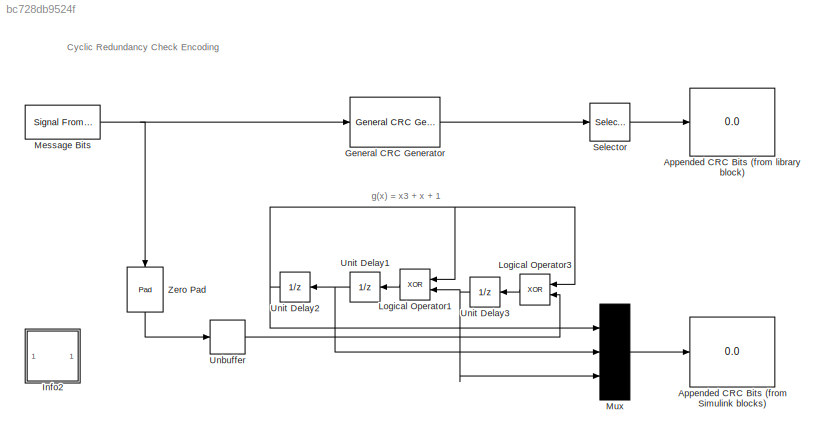
MODEL slx_bc728db9524f
KIND model
CONFIG PreLoadFcn = iniStates = [ 0 1 1];
BLOCK [Display] Appended CRC Bits (from Simulink blocks)
  Decimation = 1
  Ports = [1]
BLOCK [Display] Appended CRC Bits (from library block)
  Decimation = 1
  Ports = [1]
BLOCK [Reference] General CRC Generator  REF=commcrc2/General CRC
Generator
  Ports = [1, 1]
  SourceBlock = commcrc2/General CRC\nGenerator
  SourceType = General CRC Generator
  directMethod = off
  finalXOR = 0
  genPoly = [1 0 1 1]
  iniStates = iniStates
  numChecksums = 1
  reflectChecksums = off
  reflectInputBytes = off
BLOCK [SubSystem] Info2
  AncestorBlock = commblksprivate/Info
  OpenFcn = helpview([docroot '/toolbox/comm/comm.map'], 'doc_crcgen')
  Ports = []
  RequestExecContextInheritance = off
BLOCK [Logic] Logical Operator1
  AllPortsSameDT = off
  Operator = XOR
  OutDataTypeStr = float('double')
  Ports = [2, 1]
BLOCK [Logic] Logical Operator3
  AllPortsSameDT = off
  Operator = XOR
  OutDataTypeStr = float('double')
  Ports = [2, 1]
BLOCK [Reference] Message Bits  REF=dspsrcs4/Signal From
Workspace
  OutputAfterFinalValue = Cyclic repetition
  Ports = [0, 1]
  SourceBlock = dspsrcs4/Signal From\nWorkspace
  SourceType = Signal From Workspace
  Ts = 1
  X = [1 1 1 0 1 0]
  ignoreOrWarnInputAndFrameLengths = off
  nsamps = 6
BLOCK [Mux] Mux
  Inputs = 3
  Ports = [3, 1]
BLOCK [Selector] Selector
  Indices = [7:9]
  InputPortWidth = 9
  Ports = [1, 1]
BLOCK [Unbuffer] Unbuffer
  Ports = [1, 1]
  SampleBasedProcessing = Same as frame based
BLOCK [UnitDelay] Unit Delay1
  InitialCondition = iniStates(2)
  SampleTime = -1
BLOCK [UnitDelay] Unit Delay2
  InitialCondition = iniStates(1)
  SampleTime = -1
BLOCK [UnitDelay] Unit Delay3
  InitialCondition = iniStates(3)
  SampleTime = -1
BLOCK [Reference] Zero Pad  REF=dspsigops/Pad
  LockScale = off
  Ports = [1, 1]
  SourceBlock = dspsigops/Pad
  SourceType = Pad
  accumFracLength = 30
  accumMode = Same as input
  accumWordLength = 32
  dimsToPad = 1
  isVarDimsMode = off
  numOutCols = 1
  numOutRows = 6+3
  outSize = 1
  outSizeMode = User-specified
  outputFracLength = 15
  outputMode = Same as input
  outputWordLength = 16
  overflowMode = off
  padAlong = Columns
  padBeginning = 0
  padEnd = 0
  padNumOutColsSpecMethod = User-specified
  padNumOutRowsSpecMethod = User-specified
  padSigAt = End
  padVal = 0
  roundingMode = Floor
  spec = Output size
  truncOrWrapMode = Truncate
  trunc_flag = None
  valSrc = Specify via dialog
  wrap_flag = None
ANNOTATION (root): Cyclic Redundancy Check Encoding
ANNOTATION (root): g(x) = x3 + x + 1
LINE General CRC Generator:1 -> Selector:1
LINE Logical Operator1:1 -> Unit Delay1:1
LINE Logical Operator3:1 -> Unit Delay3:1
NET Message Bits:1 -> General CRC Generator:1, Zero Pad:1
LINE Mux:1 -> Appended CRC Bits (from Simulink blocks):1
LINE Selector:1 -> Appended CRC Bits (from library block):1
LINE Unbuffer:1 -> Logical Operator3:2
NET Unit Delay1:1 -> Mux:2, Unit Delay2:1
NET Unit Delay2:1 -> Logical Operator1:1, Logical Operator3:1, Mux:1
NET Unit Delay3:1 -> Logical Operator1:2, Mux:3
LINE Zero Pad:1 -> Unbuffer:1
note: NET lines group one-source signal fan-out (src -> all destinations, sorted); 1:1 wires keep LINE
